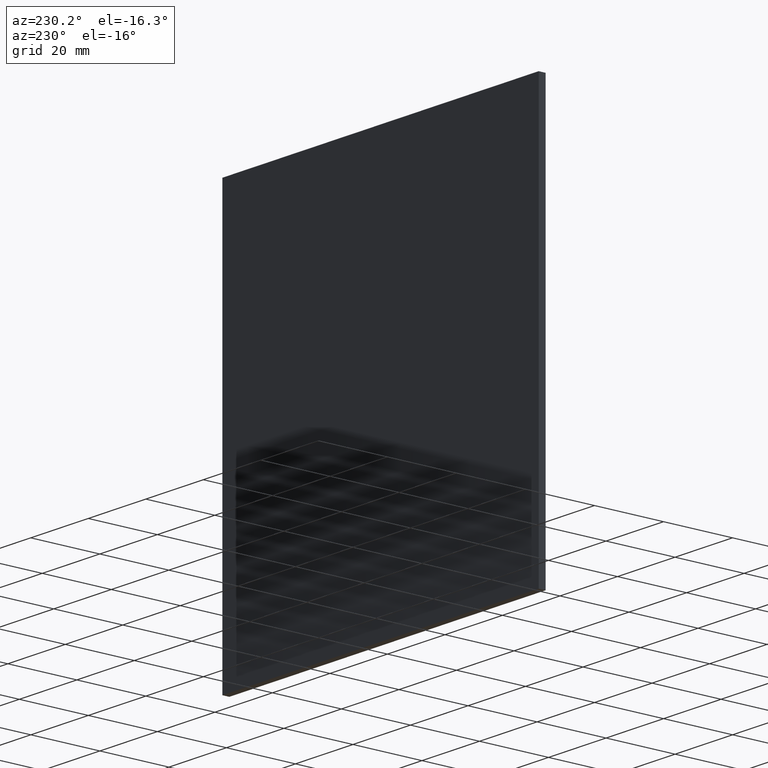
[diagram: clean part render]
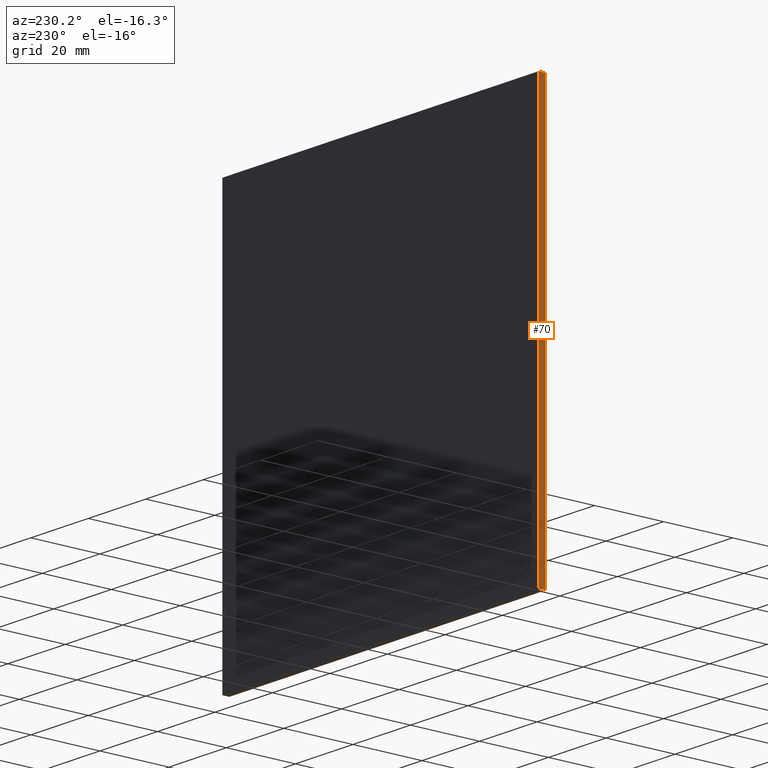
[diagram: same view with one face highlighted and labeled with its STEP entity id]
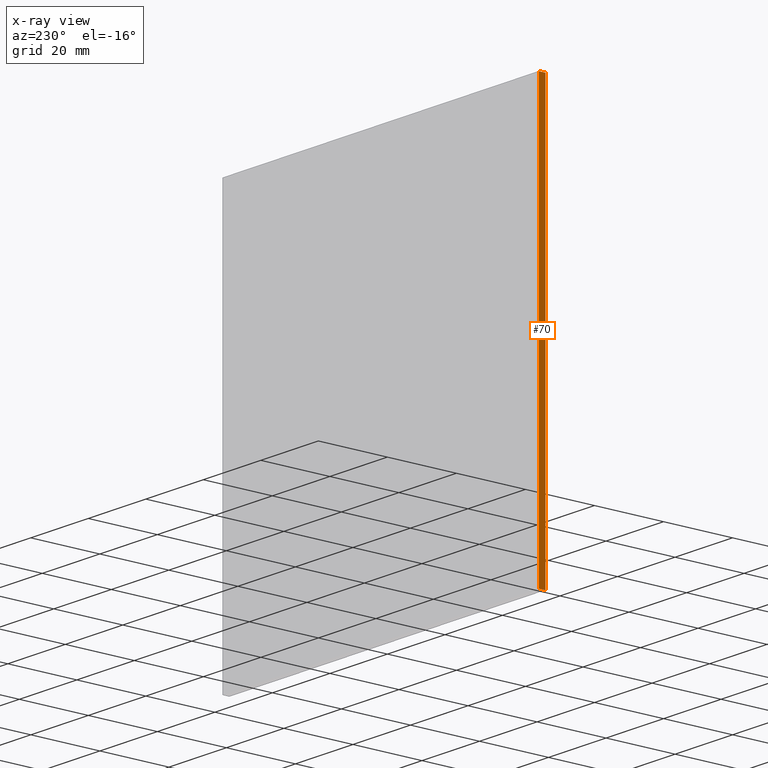
[diagram: x-ray of the same camera — body ghosted, the highlighted face saturated]
A machine part, auxiliary view. The second image highlights one B-rep face of the part: STEP entity #70.
The next image is the same camera in x-ray: the body ghosted, the highlighted face saturated — about 0% of this face is hidden behind the body in this view.
In plain terms, the highlighted planar face has unit normal (1, 0, -0).
Its self-contained STEP definition (entity closure, byte-faithful):
#5 = DIRECTION ( 'NONE',  ( 1.734723475976807100E-016, 0.0000000000000000000, 1.000000000000000000 ) ) ;
#8 = ORIENTED_EDGE ( 'NONE', *, *, #91, .F. ) ;
#22 = VERTEX_POINT ( 'NONE', #84 ) ;
#27 = DIRECTION ( 'NONE',  ( -0.0000000000000000000, -1.000000000000000000, -0.0000000000000000000 ) ) ;
#44 = CARTESIAN_POINT ( 'NONE',  ( -55.00000000000000700, 0.0000000000000000000, -60.00000000000002100 ) ) ;
#49 = CARTESIAN_POINT ( 'NONE',  ( -54.99999999999998600, 2.000000000000000000, 59.99999999999997900 ) ) ;
#50 = DIRECTION ( 'NONE',  ( -1.734723475976807100E-016, 0.0000000000000000000, -1.000000000000000000 ) ) ;
#53 = LINE ( 'NONE', #59, #202 ) ;
#59 = CARTESIAN_POINT ( 'NONE',  ( -55.00000000000000700, 2.000000000000000000, -60.00000000000002100 ) ) ;
#69 = LINE ( 'NONE', #49, #131 ) ;
#70 = ADVANCED_FACE ( 'NONE', ( #119 ), #80, .F. ) ;
#72 = VECTOR ( 'NONE', #89, 1000.000000000000000 ) ;
#73 = DIRECTION ( 'NONE',  ( -0.0000000000000000000, -1.000000000000000000, -0.0000000000000000000 ) ) ;
#78 = LINE ( 'NONE', #126, #90 ) ;
#79 = VERTEX_POINT ( 'NONE', #124 ) ;
#80 = PLANE ( 'NONE',  #175 ) ;
#84 = CARTESIAN_POINT ( 'NONE',  ( -54.99999999999998600, 0.0000000000000000000, 59.99999999999997900 ) ) ;
#85 = CARTESIAN_POINT ( 'NONE',  ( -55.00000000000000700, 2.000000000000000000, -60.00000000000002100 ) ) ;
#87 = LINE ( 'NONE', #44, #72 ) ;
#89 = DIRECTION ( 'NONE',  ( 1.734723475976807100E-016, 0.0000000000000000000, 1.000000000000000000 ) ) ;
#90 = VECTOR ( 'NONE', #5, 1000.000000000000000 ) ;
#91 = EDGE_CURVE ( 'NONE', #173, #79, #78, .T. ) ;
#92 = CARTESIAN_POINT ( 'NONE',  ( -55.00000000000000700, 2.000000000000000000, -60.00000000000002100 ) ) ;
#115 = ORIENTED_EDGE ( 'NONE', *, *, #167, .T. ) ;
#119 = FACE_OUTER_BOUND ( 'NONE', #190, .T. ) ;
#124 = CARTESIAN_POINT ( 'NONE',  ( -54.99999999999998600, 2.000000000000000000, 59.99999999999997900 ) ) ;
#126 = CARTESIAN_POINT ( 'NONE',  ( -55.00000000000000700, 2.000000000000000000, -60.00000000000002100 ) ) ;
#131 = VECTOR ( 'NONE', #27, 1000.000000000000000 ) ;
#133 = EDGE_CURVE ( 'NONE', #79, #22, #69, .T. ) ;
#142 = ORIENTED_EDGE ( 'NONE', *, *, #158, .T. ) ;
#143 = DIRECTION ( 'NONE',  ( 1.000000000000000000, 0.0000000000000000000, -1.734723475976807100E-016 ) ) ;
#158 = EDGE_CURVE ( 'NONE', #173, #193, #53, .T. ) ;
#167 = EDGE_CURVE ( 'NONE', #193, #22, #87, .T. ) ;
#173 = VERTEX_POINT ( 'NONE', #92 ) ;
#175 = AXIS2_PLACEMENT_3D ( 'NONE', #85, #143, #50 ) ;
#182 = CARTESIAN_POINT ( 'NONE',  ( -55.00000000000000700, 0.0000000000000000000, -60.00000000000002100 ) ) ;
#190 = EDGE_LOOP ( 'NONE', ( #115, #195, #8, #142 ) ) ;
#193 = VERTEX_POINT ( 'NONE', #182 ) ;
#195 = ORIENTED_EDGE ( 'NONE', *, *, #133, .F. ) ;
#202 = VECTOR ( 'NONE', #73, 1000.000000000000000 ) ;